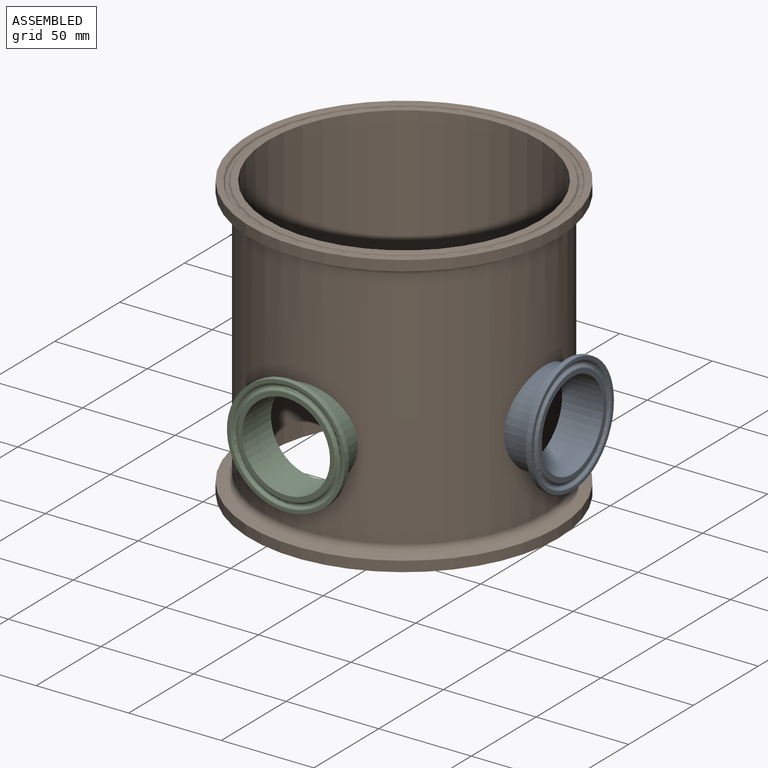
[diagram: assembled view]
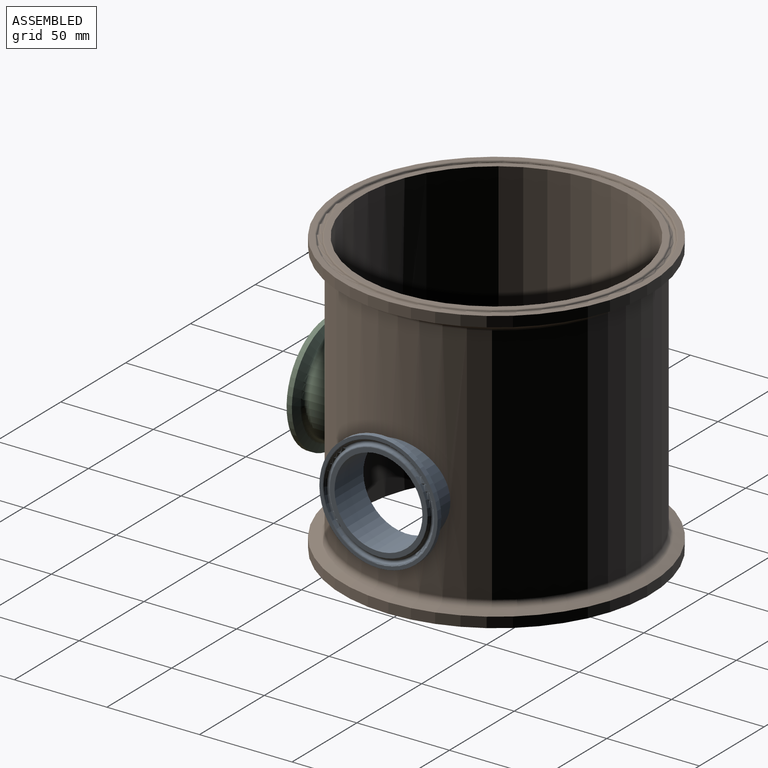
[diagram: assembled view, second angle]
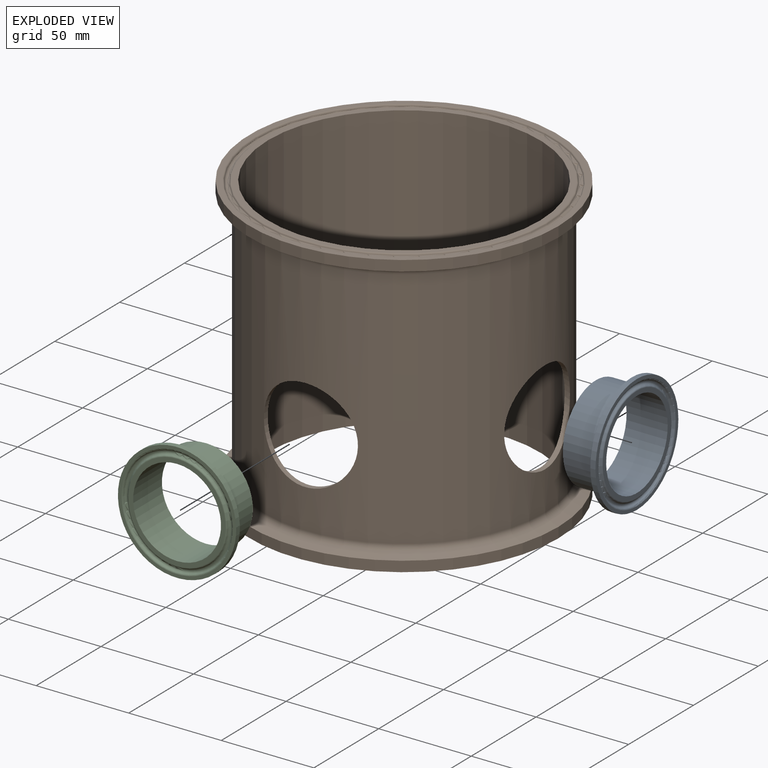
[diagram: exploded view]
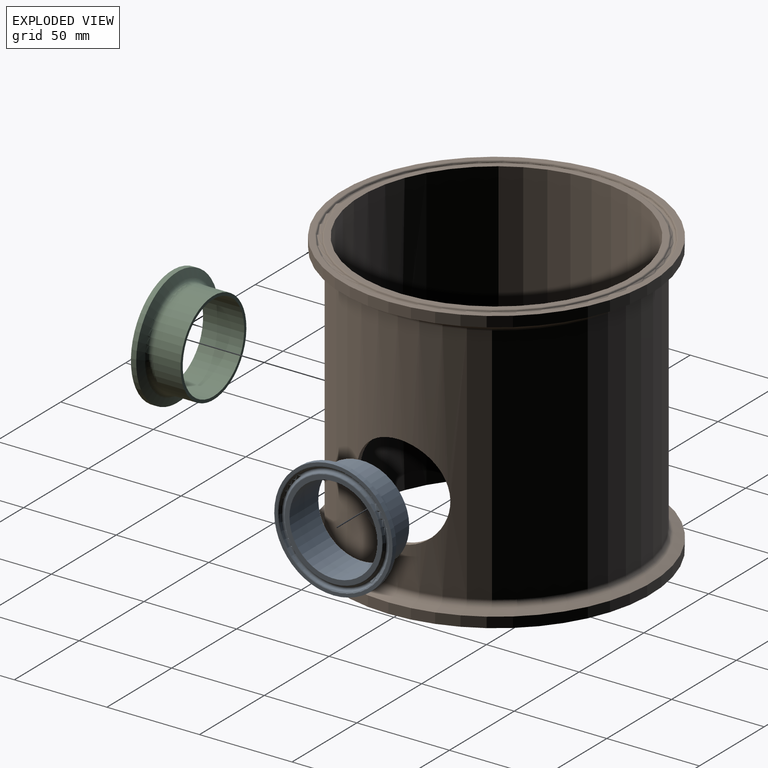
[diagram: exploded view, second angle]
ASSEMBLY  parts=3 mates=2
PART A: 13 faces, bbox 65.3x65.3x22.2 mm
  f0: plane 63.91x63.91mm, normal (0,0,1), area 350.1mm2, adj f1,f11
  f1: torus R=30.16mm, axis (0,0,1), area 172.1mm2, adj f0,f2
  f2: cone r=29.43mm half-angle=23deg, axis (0,0,1), area 78.8mm2, adj f1,f3
  f3: torus R=28.17mm, axis (0,0,1), area 494.2mm2, adj f2,f4
  f4: cone r=27.07mm half-angle=23deg, axis (0,0,-1), area 72.4mm2, adj f3,f5
  f5: torus R=26.18mm, axis (0,0,1), area 153.8mm2, adj f4,f6
  f6: plane 52.36x52.36mm, normal (0,0,1), area 381mm2, adj f5,f7
  f7: cylinder r=23.75mm len=47.5mm, axis (0,0,1), area 3316.4mm2, adj f6,f12
  f8: cylinder r=25.4mm len=50.8mm, axis (0,0,1), area 2357.5mm2, adj f9,f12
  f9: torus R=28.57mm, axis (0,0,1), area 636.9mm2, adj f8,f10
  f10: cone r=27.49mm half-angle=70deg, axis (0,0,1), area 887.1mm2, adj f9,f11
  f11: cylinder r=31.95mm len=63.91mm, axis (0,0,1), area 571.1mm2, adj f0,f10
  f12: plane 50.8x50.8mm, normal (0,0,-1), area 254.9mm2, adj f7,f8
PART B: 24 faces, bbox 175.3x175.3x152.4 mm
  f0: cylinder r=73.43mm len=152.4mm, axis (0,0,1), area 66201.8mm2, adj f8,f9,f22,f23
  f1: cylinder r=76.2mm len=152.4mm, axis (0,0,1), area 58853.7mm2, adj f18,f19,f22,f23
  f2: plane 166.88x166.88mm, normal (0,0,1), area 1551.2mm2, adj f3,f21
  f3: torus R=80.43mm, axis (0,0,1), area 462.9mm2, adj f2,f4
  f4: cone r=79.7mm half-angle=23deg, axis (0,0,1), area 213.6mm2, adj f3,f5
  f5: torus R=78.44mm, axis (0,0,1), area 1376mm2, adj f4,f6
  f6: cone r=77.34mm half-angle=23deg, axis (0,0,-1), area 207.3mm2, adj f5,f7
  f7: torus R=76.44mm, axis (0,0,1), area 444.6mm2, adj f6,f8
  f8: plane 152.89x152.89mm, normal (0,0,1), area 1418.8mm2, adj f0,f7
  f9: plane 152.89x152.89mm, normal (0,0,-1), area 1418.8mm2, adj f0,f10
  f10: torus R=76.44mm, axis (0,0,1), area 444.6mm2, adj f9,f11
  f11: cone r=77.17mm half-angle=23deg, axis (0,0,1), area 207.3mm2, adj f10,f12
  f12: torus R=78.44mm, axis (0,0,1), area 1376mm2, adj f11,f13
  f13: cone r=79.53mm half-angle=23deg, axis (0,0,-1), area 213.6mm2, adj f12,f14
  f14: torus R=80.43mm, axis (0,0,1), area 462.9mm2, adj f13,f15
  f15: plane 166.88x166.88mm, normal (0,0,-1), area 1551.2mm2, adj f14,f16
  f16: cylinder r=83.44mm len=166.88mm, axis (0,0,1), area 2929.6mm2, adj f15,f17
  f17: cone r=83.44mm half-angle=70deg, axis (0,0,-1), area 2784.5mm2, adj f16,f18
  f18: torus R=79.38mm, axis (0,0,1), area 1875mm2, adj f1,f17
  f19: torus R=79.38mm, axis (0,0,1), area 1875mm2, adj f1,f20
  f20: cone r=78.29mm half-angle=70deg, axis (0,0,1), area 2784.5mm2, adj f19,f21
  f21: cylinder r=83.44mm len=166.88mm, axis (0,0,1), area 2929.6mm2, adj f2,f20
  f22: cylinder r=25.4mm len=50.8mm, axis (0,1,0), area 454.5mm2, adj f0,f1
  f23: cylinder r=25.4mm len=50.8mm, axis (-1,0,0), area 455.5mm2, adj f0,f1
PART C: same geometry as A
PLACE A rot(axis=(0.55,0.63,0.55),115.9deg) t=(63.76,-48.67,-68.45)mm
PLACE B t=(-27.26,-48.67,26.8)mm fixed
PLACE C rot(axis=(0.85,-0.37,0.37),99.2deg) t=(-27.26,-139.68,-68.45)mm
MATE cylindrical C.f1 <-> B.f22  axis (0,-1,0) through (-27.26,-117.45,-68.45)mm
MATE cylindrical B.f23 <-> A.f1  axis (-1,0,0) through (49.02,-48.67,-68.45)mm
